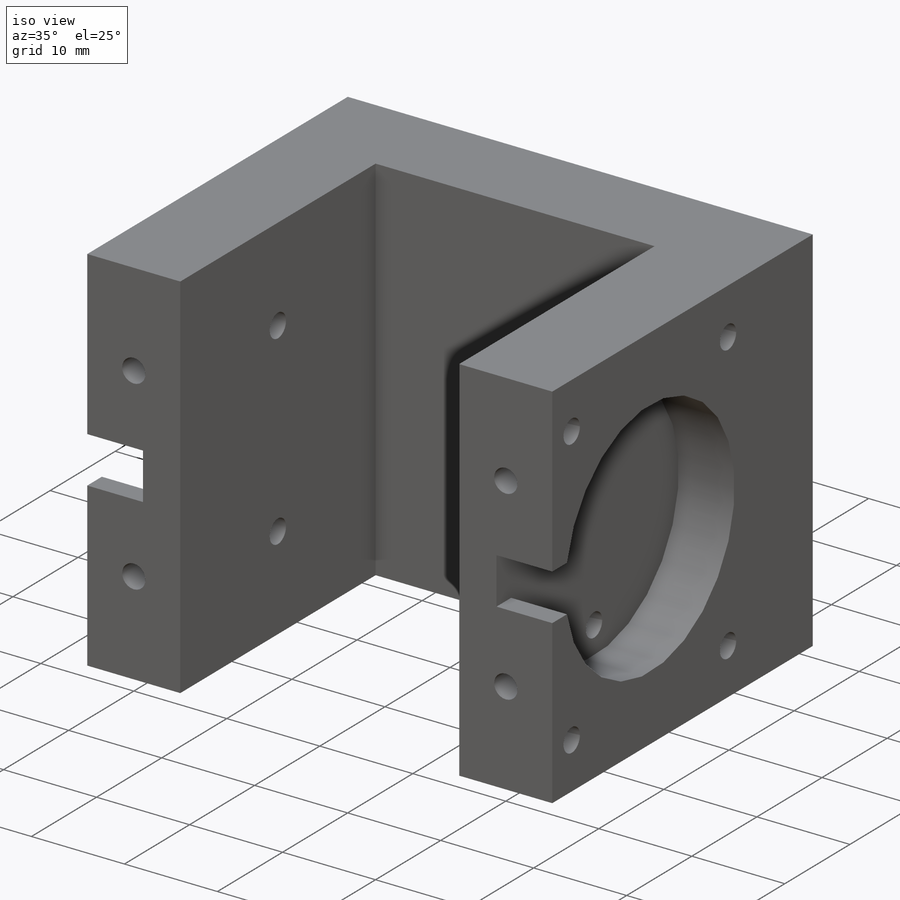
[diagram: iso view]
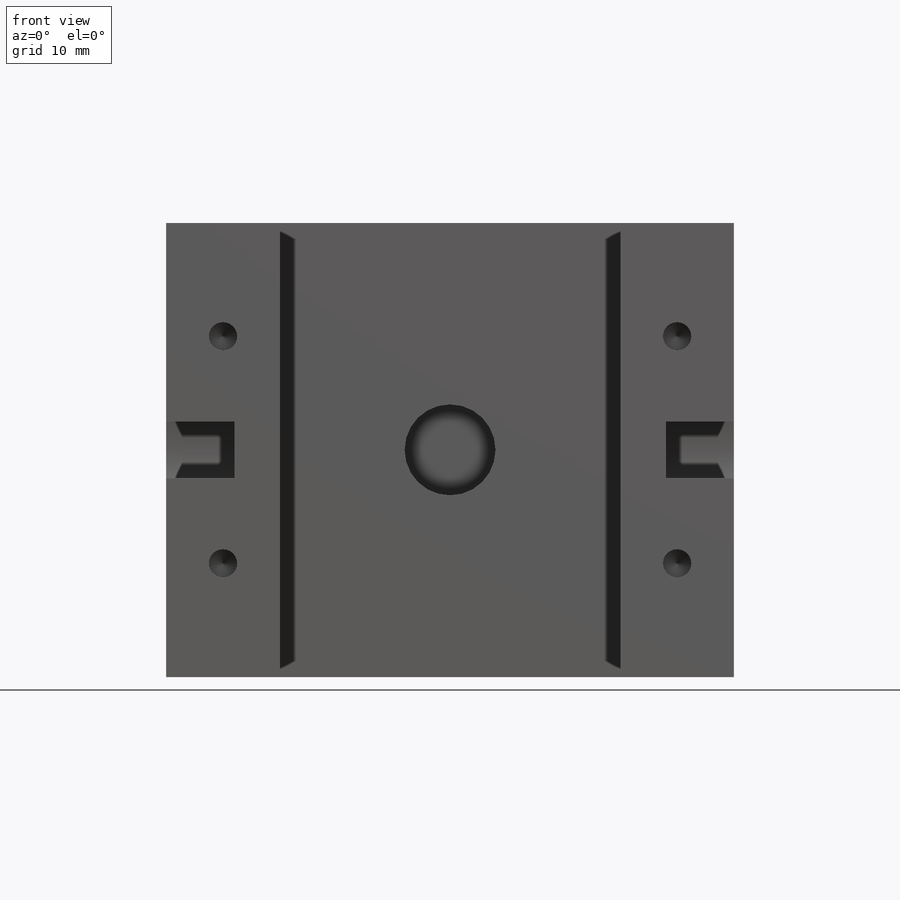
[diagram: front view]
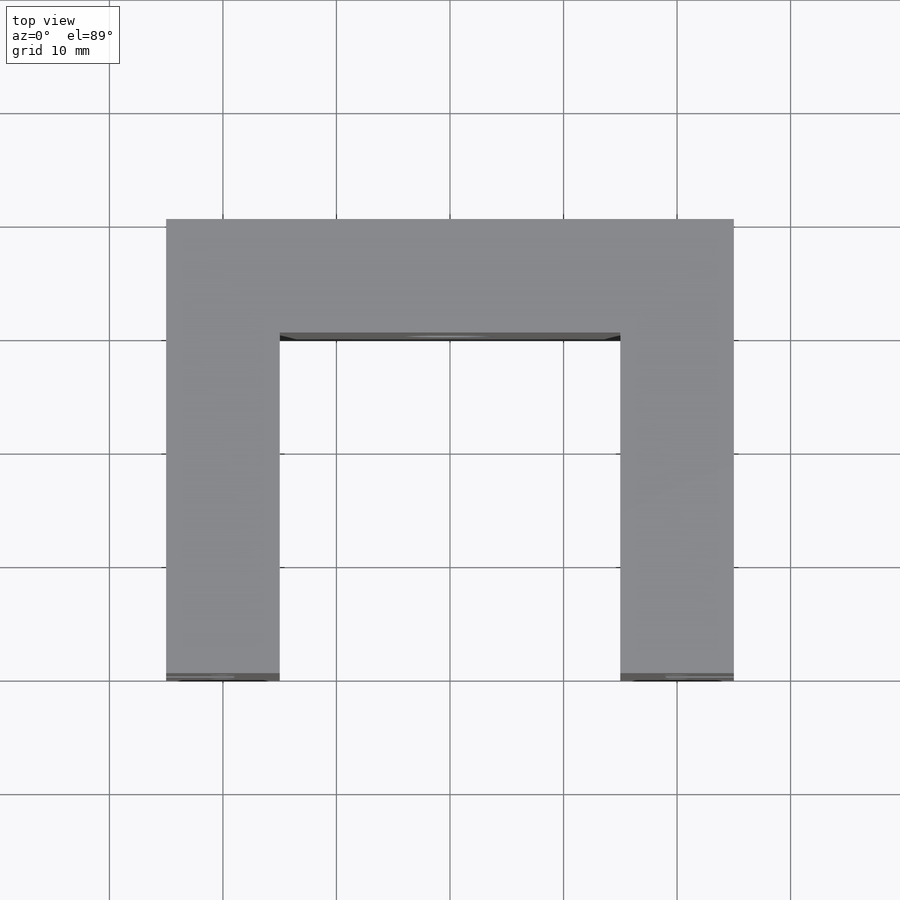
[diagram: top view]
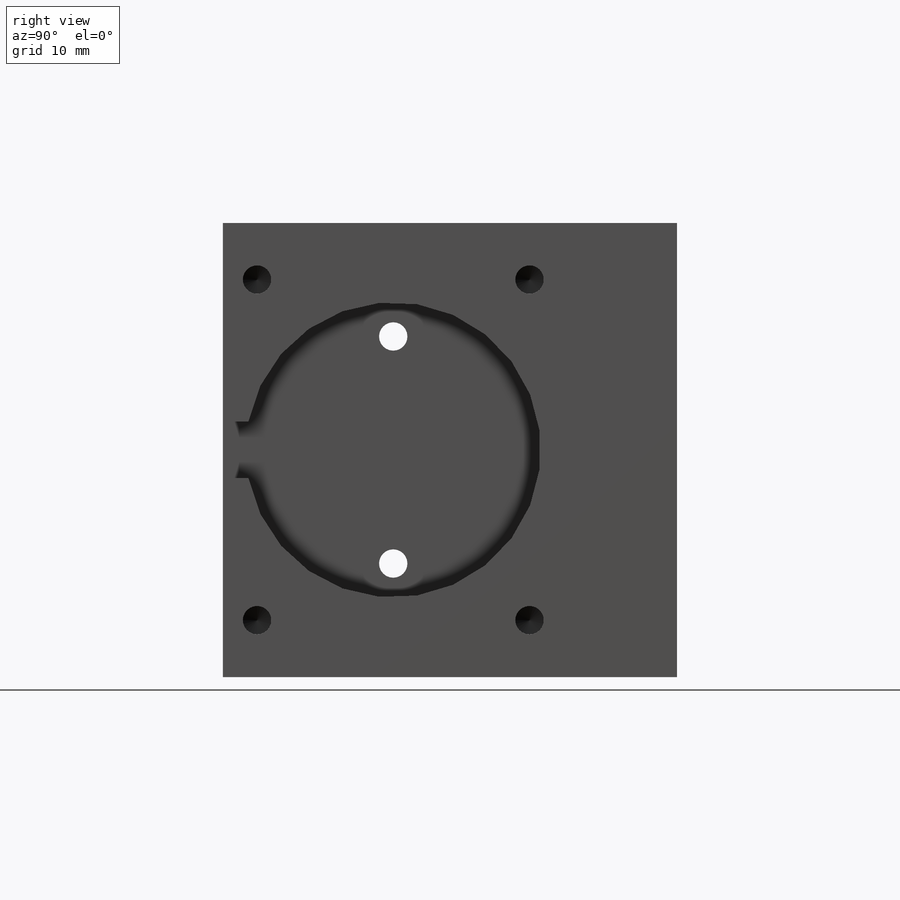
[diagram: right view]
SOLIDWORKS PART (.sldprt)
format: sldprt  version: not decoded by parser v0  size: 556,544 bytes
history: native  units: mm
features: sketch x19, thread x16, cut_extrude x6, hole x5, material x1, extrude x1 (+11 scaffold rows collapsed)
feature tree (59):
  scaffold x11  (default folders/planes/origin — collapsed)
  material  "Material <not specified>"
  sketch  "Sketch1"  dims[D1=50.0mm D2=40.0mm]
  extrude  "Boss-Extrude1"  Depth=40mm
  sketch  "Sketch2"  dims[D1=30.0mm D2=30.0mm D3=10.0mm]
  cut_extrude  "Cut-Extrude1"  [1 undecoded]
  sketch  "Sketch3"  dims[D1=26.0mm D2=25.0mm D3=20.0mm]
  cut_extrude  "Cut-Extrude2"  Depth=6mm
  sketch  "Sketch4"  dims[D1=26.0mm D4=20.0mm D2=20.0mm D3=25.0mm]
  cut_extrude  "Cut-Extrude3"  Depth=6mm
  hole  "M3x0.5 Tapped Hole1"  Diameter=2.5mm Depth=6.5mm
  sketch  "Sketch8"  dims[c1.D1=20.0mm c1.D2=10.0mm c2.D1=15.0mm c2.D2=10.0mm c2.D3=15.0mm c2.D4=10.0mm]
  sketch  "Sketch7"  dims[hole-wizard template sketch: 47 standard entries collapsed; hole parameters kept: c15.Tap Drill Depth=6.5mm c15.D3=~14.816244mm c15.Drill Angle=118.0deg]
  thread  "Hole Thread1"  Diameter=4mm  [1 undecoded]
  thread  "Hole Thread2"  Diameter=4mm  [1 undecoded]
  hole  "M3x0.5 Tapped Hole2"  Diameter=2.5mm Depth=6.5mm
  sketch  "Sketch10"  dims[c1.D1=10.0mm c1.D2=10.0mm c2.D1=15.0mm c2.D2=10.0mm c2.D3=15.0mm c2.D4=10.0mm]
  sketch  "Sketch9"  dims[hole-wizard template sketch: 47 standard entries collapsed; hole parameters kept: c15.Tap Drill Depth=6.5mm c15.D3=~14.816244mm c15.Drill Angle=118.0deg]
  thread  "Hole Thread3"  Diameter=4mm  [1 undecoded]
  thread  "Hole Thread4"  Diameter=4mm  [1 undecoded]
  hole  "M3x0.5 Tapped Hole3"  Diameter=2.5mm Depth=4mm
  sketch  "Sketch12"  dims[D1=5.0mm D2=10.0mm D3=5.0mm D4=10.0mm D5=10.0mm D6=5.0mm D7=5.0mm D8=10.0mm]
  sketch  "Sketch11"  dims[hole-wizard template sketch: 47 standard entries collapsed; hole parameters kept: c15.Tap Drill Depth=4.0mm c15.D3=~14.816244mm c15.Drill Angle=118.0deg]
  thread  "Hole Thread5"  Diameter=4mm  [1 undecoded]
  thread  "Hole Thread6"  Diameter=4mm  [1 undecoded]
  thread  "Hole Thread7"  Diameter=4mm  [1 undecoded]
  thread  "Hole Thread8"  Diameter=4mm  [1 undecoded]
  sketch  "Sketch13"  dims[D3=8.0mm D4=8.0mm D1=20.0mm D2=15.0mm]
  cut_extrude  "Cut-Extrude4"  Depth=8mm
  sketch  "Sketch15"  dims[D1=5.0mm D2=4.0mm D3=17.5mm]
  cut_extrude  "Cut-Extrude5"  Depth=6mm
  sketch  "Sketch16"  dims[D1=5.0mm D2=4.0mm D3=17.5mm]
  cut_extrude  "Cut-Extrude6"  Depth=6mm
  sketch  "Sketch17"  dims[D1=20.0mm]
  sketch  "Sketch18"  dims[D1=20.0mm]
  hole  "M3x0.5 Tapped Hole4"  Diameter=2.5mm Depth=6.5mm
  sketch  "Sketch20"  dims[D1=12.0mm D2=15.0mm D3=15.0mm D4=12.0mm D5=12.0mm D6=15.0mm D7=15.0mm D8=12.0mm]
  sketch  "Sketch19"  dims[hole-wizard template sketch: 47 standard entries collapsed; hole parameters kept: c15.Tap Drill Depth=6.5mm c15.D3=~14.816244mm c15.Drill Angle=118.0deg]
  thread  "Hole Thread9"  Diameter=4mm  [1 undecoded]
  thread  "Hole Thread10"  Diameter=4mm  [1 undecoded]
  thread  "Hole Thread11"  Diameter=4mm  [1 undecoded]
  thread  "Hole Thread12"  Diameter=4mm  [1 undecoded]
  hole  "M3x0.5 Tapped Hole5"  Diameter=2.5mm Depth=6.5mm
  sketch  "Sketch22"  dims[D1=12.0mm D2=15.0mm D3=15.0mm D4=12.0mm D5=12.0mm D6=15.0mm D7=12.0mm D8=15.0mm]
  sketch  "Sketch21"  dims[hole-wizard template sketch: 47 standard entries collapsed; hole parameters kept: c15.Tap Drill Depth=6.5mm c15.D3=~14.816244mm c15.Drill Angle=118.0deg]
  thread  "Hole Thread13"  Diameter=4mm  [1 undecoded]
  thread  "Hole Thread14"  Diameter=4mm  [1 undecoded]
  thread  "Hole Thread15"  Diameter=4mm  [1 undecoded]
  thread  "Hole Thread16"  Diameter=4mm  [1 undecoded]
decode coverage: 46 of 47 modeling features carry decoded parameters
note: ~ marks probable driven/reference dimensions
note: 17 parameter values undecoded
summary: Diameter pulled from absorbed wizard sketch
note: suppression state not decoded; provenance and decode notes live in map.json
